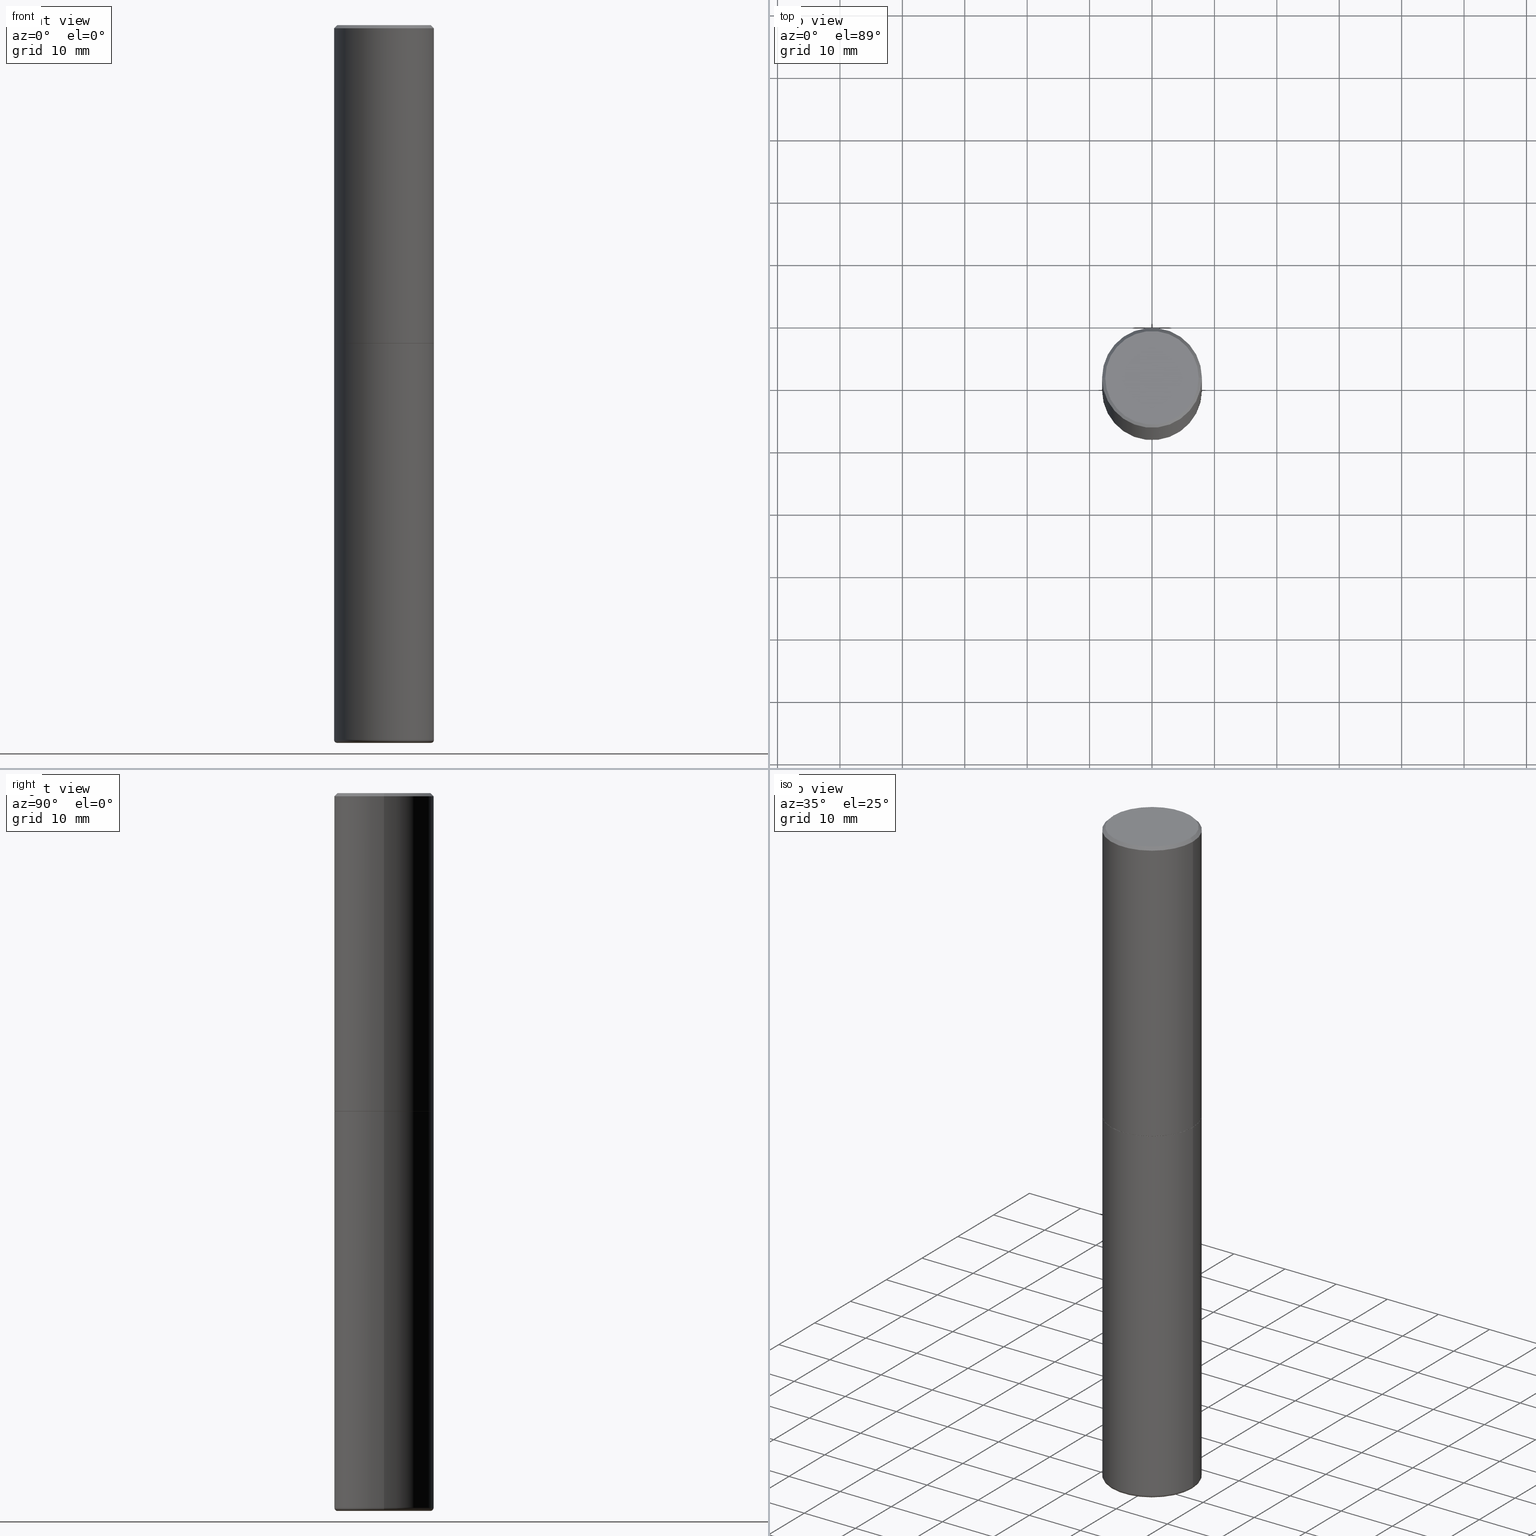
[diagram: canonical four-view strip — front | top / right | iso, engineering-drawing reading convention]
A machine part, canonical four-view strip (front | top / right | iso — engineering-drawing reading convention). The complete STEP part file that produces these views, byte-faithful:
ISO-10303-21;
HEADER;
FILE_DESCRIPTION (( 'STEP AP203' ),
    '1' );
FILE_NAME ('74498.STEP',
    '2024-03-06T15:20:06',
    ( '' ),
    ( '' ),
    'SwSTEP 2.0',
    'SolidWorks 2023',
    '' );
FILE_SCHEMA (( 'CONFIG_CONTROL_DESIGN' ));
ENDSEC;

DATA;
#1 = COORDINATED_UNIVERSAL_TIME_OFFSET ( 5, 0, .BEHIND. ) ;
#2 = ORIENTED_EDGE ( 'NONE', *, *, #283, .F. ) ;
#3 = VECTOR ( 'NONE', #249, 39.37007874015748143 ) ;
#4 = CC_DESIGN_APPROVAL ( #102, ( #357 ) ) ;
#5 = APPROVAL_DATE_TIME ( #328, #332 ) ;
#6 = VERTEX_POINT ( 'NONE', #285 ) ;
#7 = ORIENTED_EDGE ( 'NONE', *, *, #198, .F. ) ;
#8 = DIRECTION ( 'NONE',  ( 2.445468806185136597E-29, -3.491481338843145583E-15, -1.000000000000000000 ) ) ;
#9 = EDGE_CURVE ( 'NONE', #184, #155, #217, .T. ) ;
#10 = AXIS2_PLACEMENT_3D ( 'NONE', #310, #337, #340 ) ;
#11 = APPROVAL ( #317, 'UNSPECIFIED' ) ;
#12 = CIRCLE ( 'NONE', #70, 0.3149500000000000077 ) ;
#13 = FACE_OUTER_BOUND ( 'NONE', #287, .T. ) ;
#14 = DIRECTION ( 'NONE',  ( 1.000000000000000000, -6.982962677686267499E-15, 0.000000000000000000 ) ) ;
#15 = DIRECTION ( 'NONE',  ( -2.445468806185136597E-29, 3.491481338843145583E-15, 1.000000000000000000 ) ) ;
#16 = DIRECTION ( 'NONE',  ( -2.445468806185136597E-29, 3.491481338843145583E-15, 1.000000000000000000 ) ) ;
#17 = EDGE_LOOP ( 'NONE', ( #35, #230, #381, #2 ) ) ;
#18 = FACE_OUTER_BOUND ( 'NONE', #133, .T. ) ;
#19 = DIRECTION ( 'NONE',  ( -1.000000000000000000, 7.105427357601050768E-15, 0.000000000000000000 ) ) ;
#20 = DIRECTION ( 'NONE',  ( 2.438088387897960049E-29, -3.491481338843145188E-15, -1.000000000000000000 ) ) ;
#21 = CARTESIAN_POINT ( 'NONE',  ( 0.2952500000000000124, -1.786975064033309928E-14, -4.527600000000000513 ) ) ;
#22 = EDGE_LOOP ( 'NONE', ( #212, #396, #72, #28 ) ) ;
#23 = CARTESIAN_POINT ( 'NONE',  ( 2.059624841783561302E-15, 0.2949499999999996014, -8.889515087184707120E-16 ) ) ;
#24 = DIRECTION ( 'NONE',  ( 1.000000000000000000, -6.982962677686265922E-15, 0.000000000000000000 ) ) ;
#25 = AXIS2_PLACEMENT_3D ( 'NONE', #23, #137, #208 ) ;
#26 = DIRECTION ( 'NONE',  ( 1.000000000000000000, -6.982962677686268288E-15, 0.000000000000000000 ) ) ;
#27 = PERSON_AND_ORGANIZATION_ROLE ( 'design_owner' ) ;
#28 = ORIENTED_EDGE ( 'NONE', *, *, #157, .F. ) ;
#29 = AXIS2_PLACEMENT_3D ( 'NONE', #53, #302, #180 ) ;
#30 = DESIGN_CONTEXT ( 'detailed design', #265, 'design' ) ;
#31 = EDGE_CURVE ( 'NONE', #164, #228, #254, .T. ) ;
#32 = ORIENTED_EDGE ( 'NONE', *, *, #31, .F. ) ;
#33 = VERTEX_POINT ( 'NONE', #118 ) ;
#34 = SHAPE_DEFINITION_REPRESENTATION ( #267, #71 ) ;
#35 = ORIENTED_EDGE ( 'NONE', *, *, #390, .F. ) ;
#36 = AXIS2_PLACEMENT_3D ( 'NONE', #367, #203, #334 ) ;
#37 = DIRECTION ( 'NONE',  ( -2.445468806185136597E-29, 3.491481338843145583E-15, 1.000000000000000000 ) ) ;
#38 = CALENDAR_DATE ( 2024, 6, 3 ) ;
#39 = EDGE_LOOP ( 'NONE', ( #294, #314 ) ) ;
#40 = ORIENTED_EDGE ( 'NONE', *, *, #315, .T. ) ;
#41 = DIRECTION ( 'NONE',  ( -2.445468806185136597E-29, 3.491481338843145583E-15, 1.000000000000000000 ) ) ;
#42 = DIRECTION ( 'NONE',  ( -2.445468806185136597E-29, 3.491481338843145583E-15, 1.000000000000000000 ) ) ;
#43 = ORIENTED_EDGE ( 'NONE', *, *, #283, .T. ) ;
#44 = CIRCLE ( 'NONE', #10, 0.3149500000000002853 ) ;
#45 = EDGE_LOOP ( 'NONE', ( #260, #386, #93, #7 ) ) ;
#46 = DIRECTION ( 'NONE',  ( 1.000000000000000000, -6.982962677686268288E-15, 0.000000000000000000 ) ) ;
#47 = FACE_OUTER_BOUND ( 'NONE', #22, .T. ) ;
#48 = CARTESIAN_POINT ( 'NONE',  ( 1.102392883140197736E-28, -1.573924872737101586E-14, -4.507900000000000240 ) ) ;
#49 = ADVANCED_FACE ( 'NONE', ( #119 ), #220, .T. ) ;
#50 = AXIS2_PLACEMENT_3D ( 'NONE', #216, #349, #158 ) ;
#51 = LOCAL_TIME ( 10, 20, 6.000000000000000000, #1 ) ;
#52 = DIRECTION ( 'NONE',  ( 2.445468806185136597E-29, -3.491481338843145583E-15, -1.000000000000000000 ) ) ;
#53 = CARTESIAN_POINT ( 'NONE',  ( 1.102392883140197736E-28, -1.573924872737101586E-14, -4.507900000000000240 ) ) ;
#54 = FACE_OUTER_BOUND ( 'NONE', #359, .T. ) ;
#55 = DATE_TIME_ROLE ( 'classification_date' ) ;
#56 = CARTESIAN_POINT ( 'NONE',  ( -0.2952500000000000124, -1.364137130003932155E-14, -4.507900000000000240 ) ) ;
#57 = LINE ( 'NONE', #250, #281 ) ;
#58 = AXIS2_PLACEMENT_3D ( 'NONE', #241, #85, #145 ) ;
#59 = DIRECTION ( 'NONE',  ( -2.445468806185136877E-29, 3.491481338843145188E-15, 1.000000000000000000 ) ) ;
#60 = PRODUCT_DEFINITION ( 'UNKNOWN', '', #357, #30 ) ;
#61 = AXIS2_PLACEMENT_3D ( 'NONE', #284, #221, #219 ) ;
#62 = DATE_AND_TIME ( #94, #391 ) ;
#63 = ORIENTED_EDGE ( 'NONE', *, *, #315, .F. ) ;
#64 = PERSON_AND_ORGANIZATION_ROLE ( 'creator' ) ;
#65 = ORIENTED_EDGE ( 'NONE', *, *, #31, .T. ) ;
#66 = VERTEX_POINT ( 'NONE', #318 ) ;
#67 = MECHANICAL_CONTEXT ( 'NONE', #245, 'mechanical' ) ;
#68 = EDGE_CURVE ( 'NONE', #228, #33, #12, .T. ) ;
#69 = ORIENTED_EDGE ( 'NONE', *, *, #157, .T. ) ;
#70 = AXIS2_PLACEMENT_3D ( 'NONE', #277, #409, #406 ) ;
#71 = ADVANCED_BREP_SHAPE_REPRESENTATION ( '74498', ( #232, #371, #209 ), #83 ) ;
#72 = ORIENTED_EDGE ( 'NONE', *, *, #262, .F. ) ;
#73 = LINE ( 'NONE', #333, #316 ) ;
#74 = CIRCLE ( 'NONE', #135, 0.2952500000000000124 ) ;
#75 = ORIENTED_EDGE ( 'NONE', *, *, #374, .F. ) ;
#76 = DIRECTION ( 'NONE',  ( 1.000000000000000000, -6.982962677686266711E-15, 0.000000000000000000 ) ) ;
#77 = ADVANCED_FACE ( 'NONE', ( #140 ), #312, .F. ) ;
#78 = FACE_OUTER_BOUND ( 'NONE', #379, .T. ) ;
#79 = LINE ( 'NONE', #211, #3 ) ;
#80 = ADVANCED_FACE ( 'NONE', ( #244 ), #112, .F. ) ;
#81 = CARTESIAN_POINT ( 'NONE',  ( 4.910256815939135870E-29, -7.010545380263151710E-15, -2.007899999999999796 ) ) ;
#82 = CIRCLE ( 'NONE', #61, 0.01969999999999992937 ) ;
#83 =( GEOMETRIC_REPRESENTATION_CONTEXT ( 3 ) GLOBAL_UNCERTAINTY_ASSIGNED_CONTEXT ( ( #363 ) ) GLOBAL_UNIT_ASSIGNED_CONTEXT ( ( #238, #259, #224 ) ) REPRESENTATION_CONTEXT ( 'NONE', 'WORKASPACE' ) );
#84 = LENGTH_MEASURE_WITH_UNIT ( LENGTH_MEASURE( 0.02539999999999999897 ), #122 );
#85 = DIRECTION ( 'NONE',  ( -2.445468806185136597E-29, 3.491481338843145583E-15, 1.000000000000000000 ) ) ;
#86 = DIRECTION ( 'NONE',  ( -2.445468806185136597E-29, 3.491481338843145583E-15, 1.000000000000000000 ) ) ;
#87 = FACE_OUTER_BOUND ( 'NONE', #45, .T. ) ;
#88 = CARTESIAN_POINT ( 'NONE',  ( -0.3149500000000000077, 2.237854346276435590E-15, -1.549218606675782676E-29 ) ) ;
#89 = CIRCLE ( 'NONE', #36, 0.2949499999999996014 ) ;
#90 = LOCAL_TIME ( 10, 20, 6.000000000000000000, #344 ) ;
#91 = DIRECTION ( 'NONE',  ( 0.000000000000000000, 0.000000000000000000, 1.000000000000000000 ) ) ;
#92 = AXIS2_PLACEMENT_3D ( 'NONE', #147, #143, #273 ) ;
#93 = ORIENTED_EDGE ( 'NONE', *, *, #206, .F. ) ;
#94 = CALENDAR_DATE ( 2024, 6, 3 ) ;
#95 = ORIENTED_EDGE ( 'NONE', *, *, #307, .F. ) ;
#96 = PERSON_AND_ORGANIZATION ( #290, #169 ) ;
#97 = ORIENTED_EDGE ( 'NONE', *, *, #198, .T. ) ;
#98 = COORDINATED_UNIVERSAL_TIME_OFFSET ( 5, 0, .BEHIND. ) ;
#99 = VECTOR ( 'NONE', #152, 39.37007874015748143 ) ;
#100 = LOCAL_TIME ( 10, 20, 6.000000000000000000, #120 ) ;
#101 = EDGE_LOOP ( 'NONE', ( #301, #252, #97, #199 ) ) ;
#102 = APPROVAL ( #255, 'UNSPECIFIED' ) ;
#103 = AXIS2_PLACEMENT_3D ( 'NONE', #127, #41, #300 ) ;
#104 = DIRECTION ( 'NONE',  ( 0.7071067811865466846, -7.319954787623252890E-15, -0.7071067811865483499 ) ) ;
#105 = EDGE_CURVE ( 'NONE', #311, #164, #207, .T. ) ;
#106 = LINE ( 'NONE', #402, #154 ) ;
#107 = CARTESIAN_POINT ( 'NONE',  ( -0.3149500000000000077, -9.137042707540648986E-15, -2.007899999999999796 ) ) ;
#108 = CIRCLE ( 'NONE', #188, 0.3149499999999998967 ) ;
#109 = DIRECTION ( 'NONE',  ( 1.000000000000000000, -6.982962677686265922E-15, 4.876176775795935793E-29 ) ) ;
#110 = DIRECTION ( 'NONE',  ( 1.000000000000000000, -6.982962677686266711E-15, 4.876176775795936353E-29 ) ) ;
#111 = EDGE_CURVE ( 'NONE', #325, #33, #106, .T. ) ;
#112 = PLANE ( 'NONE',  #25 ) ;
#113 = EDGE_CURVE ( 'NONE', #163, #66, #89, .T. ) ;
#114 = APPROVAL_DATE_TIME ( #380, #11 ) ;
#115 = CIRCLE ( 'NONE', #246, 0.3139500000000000068 ) ;
#116 = ADVANCED_FACE ( 'NONE', ( #78 ), #299, .T. ) ;
#117 = CARTESIAN_POINT ( 'NONE',  ( -0.3149500000000000077, -1.350139438109458146E-14, -4.507900000000000240 ) ) ;
#118 = CARTESIAN_POINT ( 'NONE',  ( 0.3149500000000000077, -9.209829475600440793E-15, -2.007899999999999796 ) ) ;
#119 = FACE_OUTER_BOUND ( 'NONE', #17, .T. ) ;
#120 = COORDINATED_UNIVERSAL_TIME_OFFSET ( 5, 0, .BEHIND. ) ;
#121 = SECURITY_CLASSIFICATION_LEVEL ( 'unclassified' ) ;
#122 =( LENGTH_UNIT ( ) NAMED_UNIT ( * ) SI_UNIT ( $, .METRE. ) );
#123 = CIRCLE ( 'NONE', #103, 0.2952500000000000124 ) ;
#124 = CALENDAR_DATE ( 2024, 6, 3 ) ;
#125 = ORIENTED_EDGE ( 'NONE', *, *, #390, .T. ) ;
#126 = ORIENTED_EDGE ( 'NONE', *, *, #376, .T. ) ;
#127 = CARTESIAN_POINT ( 'NONE',  ( 1.107210456688382522E-28, -1.580803090974622705E-14, -4.527600000000000513 ) ) ;
#128 = CARTESIAN_POINT ( 'NONE',  ( 4.907811347132950267E-29, -7.007053898924307914E-15, -2.006899999999999906 ) ) ;
#129 = ADVANCED_FACE ( 'NONE', ( #178 ), #269, .T. ) ;
#130 = AXIS2_PLACEMENT_3D ( 'NONE', #242, #52, #370 ) ;
#131 = CARTESIAN_POINT ( 'NONE',  ( 4.890937612370289799E-31, -6.982962677686315028E-17, -0.02000000000000006981 ) ) ;
#132 = CARTESIAN_POINT ( 'NONE',  ( 0.3139500000000000068, -9.202846512922754778E-15, -2.007899999999999796 ) ) ;
#133 = EDGE_LOOP ( 'NONE', ( #231, #65, #75, #136 ) ) ;
#134 = ORIENTED_EDGE ( 'NONE', *, *, #68, .T. ) ;
#135 = AXIS2_PLACEMENT_3D ( 'NONE', #326, #37, #362 ) ;
#136 = ORIENTED_EDGE ( 'NONE', *, *, #111, .F. ) ;
#137 = DIRECTION ( 'NONE',  ( 2.438088387897960049E-29, -3.491481338843145188E-15, -1.000000000000000000 ) ) ;
#138 = CONICAL_SURFACE ( 'NONE', #366, 0.3149499999999998967, 0.7853981633974471688 ) ;
#139 = CYLINDRICAL_SURFACE ( 'NONE', #146, 0.3149500000000000077 ) ;
#140 = FACE_OUTER_BOUND ( 'NONE', #309, .T. ) ;
#141 = DIRECTION ( 'NONE',  ( -2.445468806185136597E-29, 3.491481338843145583E-15, 1.000000000000000000 ) ) ;
#142 = DIRECTION ( 'NONE',  ( -2.445468806185136597E-29, 3.491481338843145583E-15, 1.000000000000000000 ) ) ;
#143 = DIRECTION ( 'NONE',  ( -2.445468806185136597E-29, 3.491481338843145583E-15, 1.000000000000000000 ) ) ;
#144 = CLOSED_SHELL ( 'NONE', ( #353, #151, #77, #189, #116, #399 ) ) ;
#145 = DIRECTION ( 'NONE',  ( 1.000000000000000000, -6.982962677686266711E-15, 4.876176775795936353E-29 ) ) ;
#146 = AXIS2_PLACEMENT_3D ( 'NONE', #270, #141, #329 ) ;
#147 = CARTESIAN_POINT ( 'NONE',  ( 0.000000000000000000, 0.000000000000000000, 0.000000000000000000 ) ) ;
#148 = LOCAL_TIME ( 10, 20, 6.000000000000000000, #98 ) ;
#149 = PERSON_AND_ORGANIZATION_ROLE ( 'creator' ) ;
#150 = DIRECTION ( 'NONE',  ( -2.445468806185136877E-29, 3.491481338843145188E-15, 1.000000000000000000 ) ) ;
#151 = ADVANCED_FACE ( 'NONE', ( #47 ), #414, .T. ) ;
#152 = DIRECTION ( 'NONE',  ( -0.7071067811865466846, 2.468850131082247989E-15, -0.7071067811865483499 ) ) ;
#153 = ADVANCED_FACE ( 'NONE', ( #272 ), #271, .T. ) ;
#154 = VECTOR ( 'NONE', #339, 39.37007874015748143 ) ;
#155 = VERTEX_POINT ( 'NONE', #418 ) ;
#156 = PERSON_AND_ORGANIZATION ( #290, #169 ) ;
#157 = EDGE_CURVE ( 'NONE', #191, #325, #82, .T. ) ;
#158 = DIRECTION ( 'NONE',  ( 1.000000000000000000, -6.982962677686266711E-15, 0.000000000000000000 ) ) ;
#159 = CALENDAR_DATE ( 2024, 6, 3 ) ;
#160 = CC_DESIGN_PERSON_AND_ORGANIZATION_ASSIGNMENT ( #286, #192, ( #357 ) ) ;
#161 = CIRCLE ( 'NONE', #50, 0.3139500000000000068 ) ;
#162 = CC_DESIGN_APPROVAL ( #11, ( #282 ) ) ;
#163 = VERTEX_POINT ( 'NONE', #226 ) ;
#164 = VERTEX_POINT ( 'NONE', #117 ) ;
#165 = CARTESIAN_POINT ( 'NONE',  ( -6.889419334612450925E-45, 9.836264924510951028E-31, 2.817218243466271259E-16 ) ) ;
#166 = EDGE_CURVE ( 'NONE', #184, #384, #161, .T. ) ;
#167 = CARTESIAN_POINT ( 'NONE',  ( -0.3149499999999998967, 2.129454468560425784E-15, -0.02000000000000006981 ) ) ;
#168 = CIRCLE ( 'NONE', #222, 0.3149500000000000632 ) ;
#169 = ORGANIZATION ( 'UNSPECIFIED', 'UNSPECIFIED', '' ) ;
#170 = FACE_OUTER_BOUND ( 'NONE', #39, .T. ) ;
#171 = ORIENTED_EDGE ( 'NONE', *, *, #185, .F. ) ;
#172 = CARTESIAN_POINT ( 'NONE',  ( 4.910256815939135870E-29, -7.010545380263151710E-15, -2.007899999999999796 ) ) ;
#173 = CARTESIAN_POINT ( 'NONE',  ( 0.3149500000000000077, -1.793853282270830731E-14, -4.507900000000000240 ) ) ;
#174 = AXIS2_PLACEMENT_3D ( 'NONE', #175, #142, #306 ) ;
#175 = CARTESIAN_POINT ( 'NONE',  ( 1.102392883140197736E-28, -1.573924872737101586E-14, -4.507900000000000240 ) ) ;
#176 = APPROVAL_PERSON_ORGANIZATION ( #194, #102, #393 ) ;
#177 = DIRECTION ( 'NONE',  ( 1.000000000000000000, -6.982962677686266711E-15, 0.000000000000000000 ) ) ;
#178 = FACE_OUTER_BOUND ( 'NONE', #101, .T. ) ;
#179 = PLANE ( 'NONE',  #234 ) ;
#180 = DIRECTION ( 'NONE',  ( 1.000000000000000000, -6.982962677686271444E-15, 4.883557194083114583E-29 ) ) ;
#181 = CARTESIAN_POINT ( 'NONE',  ( -0.2952500000000000124, -1.360577393175455631E-14, -4.527600000000000513 ) ) ;
#182 = AXIS2_PLACEMENT_3D ( 'NONE', #56, #404, #19 ) ;
#183 = DIRECTION ( 'NONE',  ( 1.000000000000000000, 0.000000000000000000, 0.000000000000000000 ) ) ;
#184 = VERTEX_POINT ( 'NONE', #257 ) ;
#185 = EDGE_CURVE ( 'NONE', #6, #395, #382, .T. ) ;
#186 = EDGE_LOOP ( 'NONE', ( #197, #202, #40, #355 ) ) ;
#187 = EDGE_CURVE ( 'NONE', #163, #397, #321, .T. ) ;
#188 = AXIS2_PLACEMENT_3D ( 'NONE', #378, #86, #405 ) ;
#189 = ADVANCED_FACE ( 'NONE', ( #54 ), #343, .T. ) ;
#190 = CALENDAR_DATE ( 2024, 6, 3 ) ;
#191 = VERTEX_POINT ( 'NONE', #21 ) ;
#192 = PERSON_AND_ORGANIZATION_ROLE ( 'design_supplier' ) ;
#193 = DIRECTION ( 'NONE',  ( 1.000000000000000000, -6.982962677686265922E-15, 4.874125435057328359E-29 ) ) ;
#194 = PERSON_AND_ORGANIZATION ( #290, #169 ) ;
#195 = CIRCLE ( 'NONE', #345, 0.3149500000000002853 ) ;
#196 = EDGE_LOOP ( 'NONE', ( #289, #126 ) ) ;
#197 = ORIENTED_EDGE ( 'NONE', *, *, #376, .F. ) ;
#198 = EDGE_CURVE ( 'NONE', #384, #6, #79, .T. ) ;
#199 = ORIENTED_EDGE ( 'NONE', *, *, #413, .F. ) ;
#200 = CARTESIAN_POINT ( 'NONE',  ( 0.3149499999999998967, -2.230543471175006266E-15, -0.02000000000000006981 ) ) ;
#201 = PRODUCT_RELATED_PRODUCT_CATEGORY ( 'detail', '', ( #368 ) ) ;
#202 = ORIENTED_EDGE ( 'NONE', *, *, #237, .T. ) ;
#203 = DIRECTION ( 'NONE',  ( -2.445468806185136597E-29, 3.491481338843145583E-15, 1.000000000000000000 ) ) ;
#204 = DIRECTION ( 'NONE',  ( -2.445468806185136597E-29, 3.491481338843145583E-15, 1.000000000000000000 ) ) ;
#205 = CARTESIAN_POINT ( 'NONE',  ( 4.910256815939135870E-29, -7.010545380263151710E-15, -2.007899999999999796 ) ) ;
#206 = EDGE_CURVE ( 'NONE', #6, #155, #44, .T. ) ;
#207 = CIRCLE ( 'NONE', #182, 0.01969999999999992937 ) ;
#208 = DIRECTION ( 'NONE',  ( -1.000000000000000000, 6.982962677686265922E-15, -4.876176775795935793E-29 ) ) ;
#209 = AXIS2_PLACEMENT_3D ( 'NONE', #213, #91, #183 ) ;
#210 = FACE_OUTER_BOUND ( 'NONE', #295, .T. ) ;
#211 = CARTESIAN_POINT ( 'NONE',  ( 0.3139500000000000068, -9.202846512922754778E-15, -2.007899999999999796 ) ) ;
#212 = ORIENTED_EDGE ( 'NONE', *, *, #394, .T. ) ;
#213 = CARTESIAN_POINT ( 'NONE',  ( 0.000000000000000000, 0.000000000000000000, 0.000000000000000000 ) ) ;
#214 = VECTOR ( 'NONE', #415, 39.37007874015748143 ) ;
#215 = VECTOR ( 'NONE', #59, 39.37007874015748143 ) ;
#216 = CARTESIAN_POINT ( 'NONE',  ( 4.910256815939135870E-29, -7.010545380263151710E-15, -2.007899999999999796 ) ) ;
#217 = LINE ( 'NONE', #278, #214 ) ;
#218 = ORIENTED_EDGE ( 'NONE', *, *, #187, .T. ) ;
#219 = DIRECTION ( 'NONE',  ( 1.000000000000000000, -6.982962677686353485E-15, 0.000000000000000000 ) ) ;
#220 = CYLINDRICAL_SURFACE ( 'NONE', #338, 0.3149500000000000632 ) ;
#221 = DIRECTION ( 'NONE',  ( -6.982962677686266711E-15, -1.000000000000000000, 3.491481338843145583E-15 ) ) ;
#222 = AXIS2_PLACEMENT_3D ( 'NONE', #372, #410, #46 ) ;
#223 = CC_DESIGN_PERSON_AND_ORGANIZATION_ASSIGNMENT ( #263, #64, ( #60 ) ) ;
#224 =( NAMED_UNIT ( * ) SI_UNIT ( $, .STERADIAN. ) SOLID_ANGLE_UNIT ( ) );
#225 = ORIENTED_EDGE ( 'NONE', *, *, #111, .T. ) ;
#226 = CARTESIAN_POINT ( 'NONE',  ( -0.2949499999999996014, 2.094539655171994135E-15, 2.817218243466126306E-16 ) ) ;
#227 = APPROVAL_DATE_TIME ( #388, #102 ) ;
#228 = VERTEX_POINT ( 'NONE', #107 ) ;
#229 = DATE_AND_TIME ( #190, #100 ) ;
#230 = ORIENTED_EDGE ( 'NONE', *, *, #413, .T. ) ;
#231 = ORIENTED_EDGE ( 'NONE', *, *, #262, .T. ) ;
#232 = MANIFOLD_SOLID_BREP ( 'Body-Move/Copy2[1]', #144 ) ;
#233 = COORDINATED_UNIVERSAL_TIME_OFFSET ( 5, 0, .BEHIND. ) ;
#234 = AXIS2_PLACEMENT_3D ( 'NONE', #81, #369, #109 ) ;
#235 = ADVANCED_FACE ( 'NONE', ( #403 ), #400, .T. ) ;
#236 = PLANE ( 'NONE',  #365 ) ;
#237 = EDGE_CURVE ( 'NONE', #66, #395, #57, .T. ) ;
#238 =( CONVERSION_BASED_UNIT ( 'INCH', #84 ) LENGTH_UNIT ( ) NAMED_UNIT ( #358 ) );
#239 = APPROVAL_PERSON_ORGANIZATION ( #261, #332, #276 ) ;
#240 = DIRECTION ( 'NONE',  ( -2.445468806185136597E-29, 3.491481338843145583E-15, 1.000000000000000000 ) ) ;
#241 = CARTESIAN_POINT ( 'NONE',  ( 0.000000000000000000, 0.000000000000000000, 0.000000000000000000 ) ) ;
#242 = CARTESIAN_POINT ( 'NONE',  ( 4.890937612370289799E-31, -6.982962677686315028E-17, -0.02000000000000006981 ) ) ;
#243 = ORIENTED_EDGE ( 'NONE', *, *, #166, .F. ) ;
#244 = FACE_OUTER_BOUND ( 'NONE', #196, .T. ) ;
#245 = APPLICATION_CONTEXT ( 'configuration controlled 3d designs of mechanical parts and assemblies' ) ;
#246 = AXIS2_PLACEMENT_3D ( 'NONE', #341, #303, #76 ) ;
#247 = AXIS2_PLACEMENT_3D ( 'NONE', #172, #248, #336 ) ;
#248 = DIRECTION ( 'NONE',  ( -2.445468806185136597E-29, 3.491481338843145583E-15, 1.000000000000000000 ) ) ;
#249 = DIRECTION ( 'NONE',  ( 0.7071067811866199593, -2.468850131083015945E-15, 0.7071067811864750752 ) ) ;
#250 = CARTESIAN_POINT ( 'NONE',  ( 0.3149499999999998967, -2.230543471175006266E-15, -0.02000000000000006981 ) ) ;
#251 = CIRCLE ( 'NONE', #373, 0.3149500000000000632 ) ;
#252 = ORIENTED_EDGE ( 'NONE', *, *, #166, .T. ) ;
#253 = CC_DESIGN_DATE_AND_TIME_ASSIGNMENT ( #229, #411, ( #60 ) ) ;
#254 = LINE ( 'NONE', #88, #215 ) ;
#255 = APPROVAL_STATUS ( 'not_yet_approved' ) ;
#256 = ORIENTED_EDGE ( 'NONE', *, *, #385, .T. ) ;
#257 = CARTESIAN_POINT ( 'NONE',  ( -0.3139500000000000068, -4.774498006996093543E-15, -2.007899999999999796 ) ) ;
#258 = CONICAL_SURFACE ( 'NONE', #407, 0.3139500000000000068, 0.7853981633975507526 ) ;
#259 =( NAMED_UNIT ( * ) PLANE_ANGLE_UNIT ( ) SI_UNIT ( $, .RADIAN. ) );
#260 = ORIENTED_EDGE ( 'NONE', *, *, #307, .T. ) ;
#261 = PERSON_AND_ORGANIZATION ( #290, #169 ) ;
#262 = EDGE_CURVE ( 'NONE', #325, #164, #251, .T. ) ;
#263 = PERSON_AND_ORGANIZATION ( #290, #169 ) ;
#264 = DIRECTION ( 'NONE',  ( 2.438088387897960049E-29, -3.491481338843145188E-15, -1.000000000000000000 ) ) ;
#265 = APPLICATION_CONTEXT ( 'configuration controlled 3d designs of mechanical parts and assemblies' ) ;
#266 = ADVANCED_FACE ( 'NONE', ( #210 ), #179, .F. ) ;
#267 = PRODUCT_DEFINITION_SHAPE ( 'NONE', 'NONE',  #60 ) ;
#268 = DIRECTION ( 'NONE',  ( 1.000000000000000000, -6.982962677686263555E-15, 0.000000000000000000 ) ) ;
#269 = CONICAL_SURFACE ( 'NONE', #247, 0.3139500000000000068, 0.7853981633975507526 ) ;
#270 = CARTESIAN_POINT ( 'NONE',  ( 0.000000000000000000, 0.000000000000000000, 0.000000000000000000 ) ) ;
#271 = CYLINDRICAL_SURFACE ( 'NONE', #58, 0.3149500000000000632 ) ;
#272 = FACE_OUTER_BOUND ( 'NONE', #360, .T. ) ;
#273 = DIRECTION ( 'NONE',  ( 1.000000000000000000, -6.982962677686266711E-15, 4.876176775795936353E-29 ) ) ;
#274 = CIRCLE ( 'NONE', #348, 0.3149499999999998967 ) ;
#275 = DIRECTION ( 'NONE',  ( -2.445468806185136597E-29, 3.491481338843145583E-15, 1.000000000000000000 ) ) ;
#276 = APPROVAL_ROLE ( '' ) ;
#277 = CARTESIAN_POINT ( 'NONE',  ( 4.910256815939135870E-29, -7.010545380263151710E-15, -2.007899999999999796 ) ) ;
#278 = CARTESIAN_POINT ( 'NONE',  ( -0.3139500000000000068, -4.779796461344316734E-15, -2.007899999999999796 ) ) ;
#279 = CARTESIAN_POINT ( 'NONE',  ( -0.3149499999999998967, 2.129454468560425784E-15, -0.02000000000000006981 ) ) ;
#280 = ORIENTED_EDGE ( 'NONE', *, *, #68, .F. ) ;
#281 = VECTOR ( 'NONE', #104, 39.37007874015748143 ) ;
#282 = SECURITY_CLASSIFICATION ( '', '', #121 ) ;
#283 = EDGE_CURVE ( 'NONE', #397, #395, #108, .T. ) ;
#284 = CARTESIAN_POINT ( 'NONE',  ( 0.2952500000000000124, -1.780096845795788810E-14, -4.507900000000000240 ) ) ;
#285 = CARTESIAN_POINT ( 'NONE',  ( 0.3149500000000002853, -9.206337994261599363E-15, -2.006899999999999906 ) ) ;
#286 = PERSON_AND_ORGANIZATION ( #290, #169 ) ;
#287 = EDGE_LOOP ( 'NONE', ( #330, #352, #218, #43 ) ) ;
#288 = APPROVAL_ROLE ( '' ) ;
#289 = ORIENTED_EDGE ( 'NONE', *, *, #113, .T. ) ;
#290 = PERSON ( 'UNSPECIFIED', 'UNSPECIFIED', 'UNSPECIFIED', ('UNSPECIFIED'), ('UNSPECIFIED'), ('UNSPECIFIED') ) ;
#291 = CIRCLE ( 'NONE', #304, 0.3149500000000000077 ) ;
#292 = PERSON_AND_ORGANIZATION ( #290, #169 ) ;
#293 = ORIENTED_EDGE ( 'NONE', *, *, #323, .F. ) ;
#294 = ORIENTED_EDGE ( 'NONE', *, *, #394, .F. ) ;
#295 = EDGE_LOOP ( 'NONE', ( #95, #243 ) ) ;
#296 = CARTESIAN_POINT ( 'NONE',  ( 5.221450880235528142E-29, -2.418649998755440149E-14, -4.527600000000000513 ) ) ;
#297 = ORIENTED_EDGE ( 'NONE', *, *, #105, .F. ) ;
#298 = DIRECTION ( 'NONE',  ( -1.000000000000000000, 6.982962677686265922E-15, -4.876176775795935793E-29 ) ) ;
#299 = TOROIDAL_SURFACE ( 'NONE', #29, 0.2952500000000000124, 0.01969999999999992937 ) ;
#300 = DIRECTION ( 'NONE',  ( 1.000000000000000000, -6.982962677686273021E-15, 0.000000000000000000 ) ) ;
#301 = ORIENTED_EDGE ( 'NONE', *, *, #9, .F. ) ;
#302 = DIRECTION ( 'NONE',  ( -2.445468806185136597E-29, 3.491481338843145583E-15, 1.000000000000000000 ) ) ;
#303 = DIRECTION ( 'NONE',  ( -2.445468806185136597E-29, 3.491481338843145583E-15, 1.000000000000000000 ) ) ;
#304 = AXIS2_PLACEMENT_3D ( 'NONE', #364, #16, #268 ) ;
#305 = APPROVAL_PERSON_ORGANIZATION ( #96, #11, #288 ) ;
#306 = DIRECTION ( 'NONE',  ( 1.000000000000000000, -6.982962677686271444E-15, 4.883557194083114583E-29 ) ) ;
#307 = EDGE_CURVE ( 'NONE', #384, #184, #115, .T. ) ;
#308 = CC_DESIGN_DATE_AND_TIME_ASSIGNMENT ( #62, #55, ( #282 ) ) ;
#309 = EDGE_LOOP ( 'NONE', ( #375, #134 ) ) ;
#310 = CARTESIAN_POINT ( 'NONE',  ( 4.907811347132950267E-29, -7.007053898924307914E-15, -2.006899999999999906 ) ) ;
#311 = VERTEX_POINT ( 'NONE', #181 ) ;
#312 = PLANE ( 'NONE',  #356 ) ;
#313 = CARTESIAN_POINT ( 'NONE',  ( 4.890937612370289799E-31, -6.982962677686315028E-17, -0.02000000000000006981 ) ) ;
#314 = ORIENTED_EDGE ( 'NONE', *, *, #385, .F. ) ;
#315 = EDGE_CURVE ( 'NONE', #395, #397, #274, .T. ) ;
#316 = VECTOR ( 'NONE', #331, 39.37007874015748143 ) ;
#317 = APPROVAL_STATUS ( 'not_yet_approved' ) ;
#318 = CARTESIAN_POINT ( 'NONE',  ( 0.2949499999999996014, -2.127023677808857708E-15, 2.817218243466417691E-16 ) ) ;
#319 = APPLICATION_PROTOCOL_DEFINITION ( 'international standard', 'config_control_design', 1994, #245 ) ;
#320 = CARTESIAN_POINT ( 'NONE',  ( 0.3149500000000000632, -2.199284095337290265E-15, 1.535751875536930410E-29 ) ) ;
#321 = LINE ( 'NONE', #279, #99 ) ;
#322 = ADVANCED_FACE ( 'NONE', ( #87 ), #258, .T. ) ;
#323 = EDGE_CURVE ( 'NONE', #164, #325, #168, .T. ) ;
#324 = VECTOR ( 'NONE', #150, 39.37007874015748143 ) ;
#325 = VERTEX_POINT ( 'NONE', #173 ) ;
#326 = CARTESIAN_POINT ( 'NONE',  ( 1.107210456688382522E-28, -1.580803090974622705E-14, -4.527600000000000513 ) ) ;
#327 = AXIS2_PLACEMENT_3D ( 'NONE', #165, #15, #193 ) ;
#328 = DATE_AND_TIME ( #159, #90 ) ;
#329 = DIRECTION ( 'NONE',  ( 1.000000000000000000, -6.982962677686266711E-15, 4.876176775795936353E-29 ) ) ;
#330 = ORIENTED_EDGE ( 'NONE', *, *, #237, .F. ) ;
#331 = DIRECTION ( 'NONE',  ( -2.445468806185136877E-29, 3.491481338843145188E-15, 1.000000000000000000 ) ) ;
#332 = APPROVAL ( #354, 'UNSPECIFIED' ) ;
#333 = CARTESIAN_POINT ( 'NONE',  ( -0.3149500000000000632, 2.237854346276435985E-15, -1.549218606675782956E-29 ) ) ;
#334 = DIRECTION ( 'NONE',  ( 1.000000000000000000, -6.982962677686265922E-15, 4.874125435057328359E-29 ) ) ;
#335 = CARTESIAN_POINT ( 'NONE',  ( 4.910256815939135870E-29, -7.010545380263151710E-15, -2.007899999999999796 ) ) ;
#336 = DIRECTION ( 'NONE',  ( 1.000000000000000000, -6.982962677686266711E-15, 0.000000000000000000 ) ) ;
#337 = DIRECTION ( 'NONE',  ( -2.445468806185136597E-29, 3.491481338843145583E-15, 1.000000000000000000 ) ) ;
#338 = AXIS2_PLACEMENT_3D ( 'NONE', #416, #346, #110 ) ;
#339 = DIRECTION ( 'NONE',  ( -2.445468806185136877E-29, 3.491481338843145188E-15, 1.000000000000000000 ) ) ;
#340 = DIRECTION ( 'NONE',  ( 1.000000000000000000, -6.982962677686267499E-15, 0.000000000000000000 ) ) ;
#341 = CARTESIAN_POINT ( 'NONE',  ( 4.910256815939135870E-29, -7.010545380263151710E-15, -2.007899999999999796 ) ) ;
#342 = DIRECTION ( 'NONE',  ( -1.000000000000000000, 6.982962677686265922E-15, -4.876176775795935793E-29 ) ) ;
#343 = CYLINDRICAL_SURFACE ( 'NONE', #92, 0.3149500000000000077 ) ;
#344 = COORDINATED_UNIVERSAL_TIME_OFFSET ( 5, 0, .BEHIND. ) ;
#345 = AXIS2_PLACEMENT_3D ( 'NONE', #128, #42, #14 ) ;
#346 = DIRECTION ( 'NONE',  ( -2.445468806185136597E-29, 3.491481338843145583E-15, 1.000000000000000000 ) ) ;
#347 = CLOSED_SHELL ( 'NONE', ( #322, #153, #235, #412, #49, #129, #266, #80 ) ) ;
#348 = AXIS2_PLACEMENT_3D ( 'NONE', #313, #204, #24 ) ;
#349 = DIRECTION ( 'NONE',  ( -2.445468806185136597E-29, 3.491481338843145583E-15, 1.000000000000000000 ) ) ;
#350 = PERSON_AND_ORGANIZATION_ROLE ( 'classification_officer' ) ;
#351 = ORIENTED_EDGE ( 'NONE', *, *, #206, .T. ) ;
#352 = ORIENTED_EDGE ( 'NONE', *, *, #113, .F. ) ;
#353 = ADVANCED_FACE ( 'NONE', ( #18 ), #139, .T. ) ;
#354 = APPROVAL_STATUS ( 'not_yet_approved' ) ;
#355 = ORIENTED_EDGE ( 'NONE', *, *, #187, .F. ) ;
#356 = AXIS2_PLACEMENT_3D ( 'NONE', #205, #20, #342 ) ;
#357 = PRODUCT_DEFINITION_FORMATION_WITH_SPECIFIED_SOURCE ( 'ANY', '', #368, .NOT_KNOWN. ) ;
#358 = DIMENSIONAL_EXPONENTS ( 1.000000000000000000, 0.000000000000000000, 0.000000000000000000, 0.000000000000000000, 0.000000000000000000, 0.000000000000000000, 0.000000000000000000 ) ;
#359 = EDGE_LOOP ( 'NONE', ( #32, #377, #225, #280 ) ) ;
#360 = EDGE_LOOP ( 'NONE', ( #351, #125, #63, #171 ) ) ;
#361 = CC_DESIGN_PERSON_AND_ORGANIZATION_ASSIGNMENT ( #292, #27, ( #368 ) ) ;
#362 = DIRECTION ( 'NONE',  ( 1.000000000000000000, -6.982962677686273021E-15, 0.000000000000000000 ) ) ;
#363 = UNCERTAINTY_MEASURE_WITH_UNIT (LENGTH_MEASURE( 1.000000000000000082E-05 ), #238, 'distance_accuracy_value', 'NONE');
#364 = CARTESIAN_POINT ( 'NONE',  ( 4.910256815939135870E-29, -7.010545380263151710E-15, -2.007899999999999796 ) ) ;
#365 = AXIS2_PLACEMENT_3D ( 'NONE', #296, #264, #298 ) ;
#366 = AXIS2_PLACEMENT_3D ( 'NONE', #131, #8, #398 ) ;
#367 = CARTESIAN_POINT ( 'NONE',  ( -6.889419334612450925E-45, 9.836264924510951028E-31, 2.817218243466271259E-16 ) ) ;
#368 = PRODUCT ( '74498', '74498', '', ( #67 ) ) ;
#369 = DIRECTION ( 'NONE',  ( -2.438088387897960049E-29, 3.491481338843145188E-15, 1.000000000000000000 ) ) ;
#370 = DIRECTION ( 'NONE',  ( -1.000000000000000000, 6.982962677686265922E-15, 0.000000000000000000 ) ) ;
#371 = MANIFOLD_SOLID_BREP ( 'Body-Move/Copy2[2]', #347 ) ;
#372 = CARTESIAN_POINT ( 'NONE',  ( 1.102392883140197736E-28, -1.573924872737101586E-14, -4.507900000000000240 ) ) ;
#373 = AXIS2_PLACEMENT_3D ( 'NONE', #48, #240, #26 ) ;
#374 = EDGE_CURVE ( 'NONE', #33, #228, #291, .T. ) ;
#375 = ORIENTED_EDGE ( 'NONE', *, *, #374, .T. ) ;
#376 = EDGE_CURVE ( 'NONE', #66, #163, #389, .T. ) ;
#377 = ORIENTED_EDGE ( 'NONE', *, *, #323, .T. ) ;
#378 = CARTESIAN_POINT ( 'NONE',  ( 4.890937612370289799E-31, -6.982962677686315028E-17, -0.02000000000000006981 ) ) ;
#379 = EDGE_LOOP ( 'NONE', ( #297, #256, #69, #293 ) ) ;
#380 = DATE_AND_TIME ( #124, #51 ) ;
#381 = ORIENTED_EDGE ( 'NONE', *, *, #185, .T. ) ;
#382 = LINE ( 'NONE', #320, #324 ) ;
#383 = CC_DESIGN_SECURITY_CLASSIFICATION ( #282, ( #357 ) ) ;
#384 = VERTEX_POINT ( 'NONE', #132 ) ;
#385 = EDGE_CURVE ( 'NONE', #311, #191, #74, .T. ) ;
#386 = ORIENTED_EDGE ( 'NONE', *, *, #9, .T. ) ;
#387 = CC_DESIGN_PERSON_AND_ORGANIZATION_ASSIGNMENT ( #156, #149, ( #357 ) ) ;
#388 = DATE_AND_TIME ( #38, #148 ) ;
#389 = CIRCLE ( 'NONE', #327, 0.2949499999999996014 ) ;
#390 = EDGE_CURVE ( 'NONE', #155, #397, #73, .T. ) ;
#391 = LOCAL_TIME ( 10, 20, 6.000000000000000000, #233 ) ;
#392 = PERSON_AND_ORGANIZATION ( #290, #169 ) ;
#393 = APPROVAL_ROLE ( '' ) ;
#394 = EDGE_CURVE ( 'NONE', #191, #311, #123, .T. ) ;
#395 = VERTEX_POINT ( 'NONE', #200 ) ;
#396 = ORIENTED_EDGE ( 'NONE', *, *, #105, .T. ) ;
#397 = VERTEX_POINT ( 'NONE', #167 ) ;
#398 = DIRECTION ( 'NONE',  ( -1.000000000000000000, 6.982962677686265922E-15, 0.000000000000000000 ) ) ;
#399 = ADVANCED_FACE ( 'NONE', ( #170 ), #236, .T. ) ;
#400 = CONICAL_SURFACE ( 'NONE', #130, 0.3149499999999998967, 0.7853981633974471688 ) ;
#401 = CC_DESIGN_PERSON_AND_ORGANIZATION_ASSIGNMENT ( #392, #350, ( #282 ) ) ;
#402 = CARTESIAN_POINT ( 'NONE',  ( 0.3149500000000000077, -2.199284095337289871E-15, 1.535751875536930130E-29 ) ) ;
#403 = FACE_OUTER_BOUND ( 'NONE', #186, .T. ) ;
#404 = DIRECTION ( 'NONE',  ( 7.105427357601001859E-15, 1.000000000000000000, -3.491481338843145583E-15 ) ) ;
#405 = DIRECTION ( 'NONE',  ( 1.000000000000000000, -6.982962677686265922E-15, 0.000000000000000000 ) ) ;
#406 = DIRECTION ( 'NONE',  ( 1.000000000000000000, -6.982962677686263555E-15, 0.000000000000000000 ) ) ;
#407 = AXIS2_PLACEMENT_3D ( 'NONE', #335, #275, #177 ) ;
#408 = CC_DESIGN_APPROVAL ( #332, ( #60 ) ) ;
#409 = DIRECTION ( 'NONE',  ( -2.445468806185136597E-29, 3.491481338843145583E-15, 1.000000000000000000 ) ) ;
#410 = DIRECTION ( 'NONE',  ( -2.445468806185136597E-29, 3.491481338843145583E-15, 1.000000000000000000 ) ) ;
#411 = DATE_TIME_ROLE ( 'creation_date' ) ;
#412 = ADVANCED_FACE ( 'NONE', ( #13 ), #138, .T. ) ;
#413 = EDGE_CURVE ( 'NONE', #155, #6, #195, .T. ) ;
#414 = TOROIDAL_SURFACE ( 'NONE', #174, 0.2952500000000000124, 0.01969999999999992937 ) ;
#415 = DIRECTION ( 'NONE',  ( -0.7071067811866199593, 7.493145998870616062E-15, 0.7071067811864750752 ) ) ;
#416 = CARTESIAN_POINT ( 'NONE',  ( 0.000000000000000000, 0.000000000000000000, 0.000000000000000000 ) ) ;
#417 = APPLICATION_PROTOCOL_DEFINITION ( 'international standard', 'config_control_design', 1994, #265 ) ;
#418 = CARTESIAN_POINT ( 'NONE',  ( -0.3149500000000002853, -1.300587416574145677E-15, -2.006899999999999906 ) ) ;
ENDSEC;
END-ISO-10303-21;
